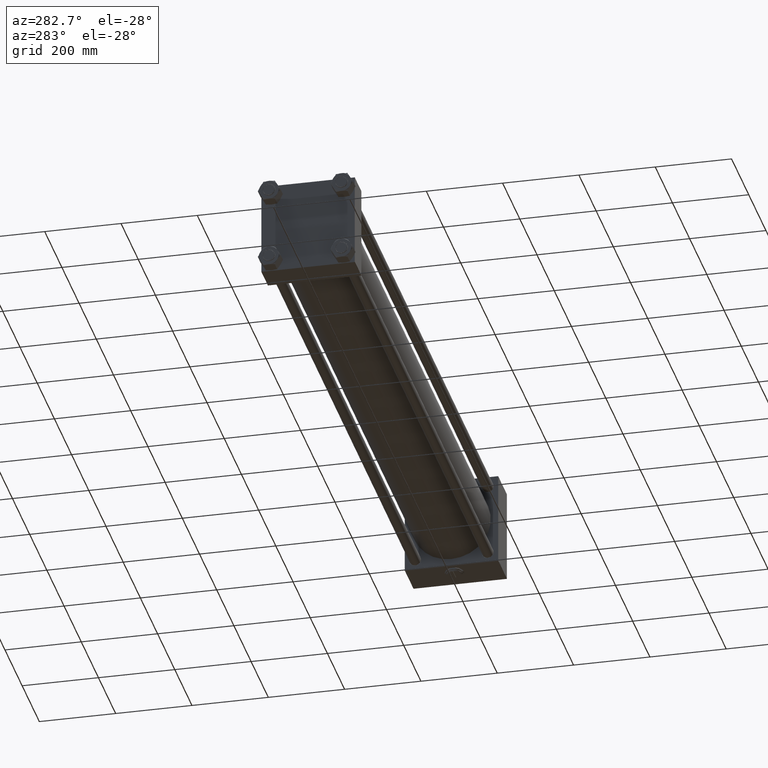
[diagram: clean part render]
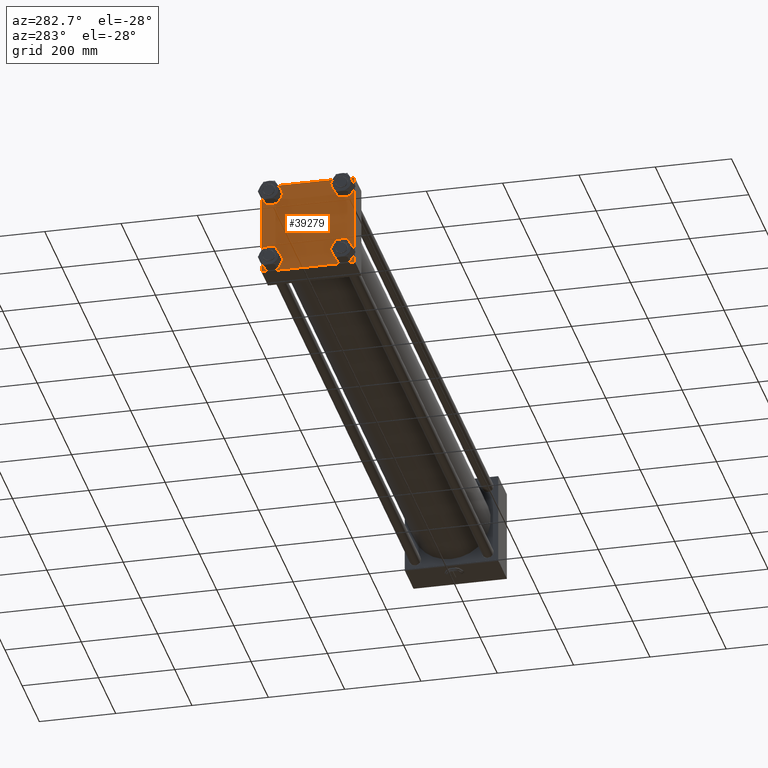
[diagram: same view with one face highlighted and labeled with its STEP entity id]
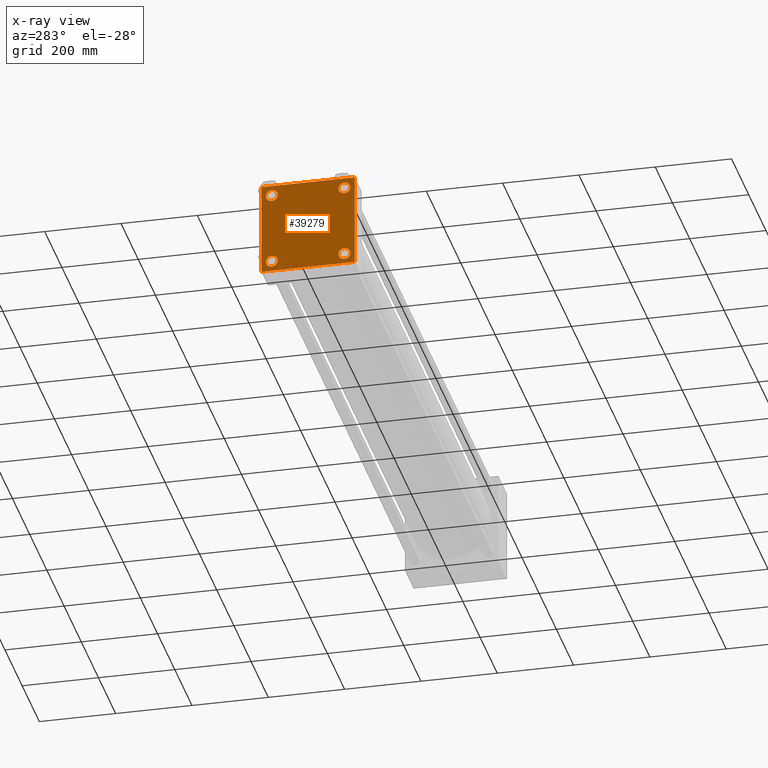
[diagram: x-ray of the same camera — body ghosted, the highlighted face saturated]
A machine part, auxiliary view. The second image highlights one B-rep face of the part: STEP entity #39279.
The next image is the same camera in x-ray: the body ghosted, the highlighted face saturated — about 0% of this face is hidden behind the body in this view.
In plain terms, the highlighted planar face has unit normal (-1, 0, 0).
Its self-contained STEP definition (entity closure, byte-faithful):
#1414 = AXIS2_PLACEMENT_3D ( 'NONE', #44071, #23887, #45120 ) ;
#1490 = EDGE_CURVE ( 'NONE', #48403, #10804, #31920, .T. ) ;
#1765 = DIRECTION ( 'NONE',  ( 0.000000000000000000, 0.000000000000000000, 1.000000000000000000 ) ) ;
#2481 = LINE ( 'NONE', #31654, #32756 ) ;
#3482 = FACE_BOUND ( 'NONE', #43320, .T. ) ;
#3654 = DIRECTION ( 'NONE',  ( 1.000000000000000000, -0.000000000000000000, 0.000000000000000000 ) ) ;
#3745 = DIRECTION ( 'NONE',  ( 1.000000000000000000, -0.000000000000000000, 0.000000000000000000 ) ) ;
#3845 = VERTEX_POINT ( 'NONE', #37448 ) ;
#4413 = DIRECTION ( 'NONE',  ( 0.000000000000000000, 0.7071067811865474617, -0.7071067811865474617 ) ) ;
#4495 = CARTESIAN_POINT ( 'NONE',  ( -0.000000000000000000, -122.2499999999982947, 122.2500000000016911 ) ) ;
#4717 = DIRECTION ( 'NONE',  ( 1.000000000000000000, -0.000000000000000000, 0.000000000000000000 ) ) ;
#5333 = VERTEX_POINT ( 'NONE', #51243 ) ;
#5590 = LINE ( 'NONE', #18313, #39614 ) ;
#6200 = CARTESIAN_POINT ( 'NONE',  ( 0.000000000000000000, -95.09999999999996589, -95.10000000000000853 ) ) ;
#7699 = CARTESIAN_POINT ( 'NONE',  ( 0.000000000000000000, 95.09999999999999432, -110.5999999999999943 ) ) ;
#7960 = CARTESIAN_POINT ( 'NONE',  ( 0.000000000000000000, 95.09999999999999432, -79.59999999999996589 ) ) ;
#9429 = ORIENTED_EDGE ( 'NONE', *, *, #41060, .T. ) ;
#9480 = EDGE_CURVE ( 'NONE', #3845, #33584, #5590, .T. ) ;
#9710 = EDGE_CURVE ( 'NONE', #41540, #33584, #16962, .T. ) ;
#10002 = VECTOR ( 'NONE', #33135, 999.9999999999998863 ) ;
#10800 = DIRECTION ( 'NONE',  ( -0.000000000000000000, -0.7071067811865081598, -0.7071067811865867636 ) ) ;
#10804 = VERTEX_POINT ( 'NONE', #48041 ) ;
#11365 = CARTESIAN_POINT ( 'NONE',  ( 0.000000000000000000, -95.09999999999996589, -95.10000000000000853 ) ) ;
#11598 = CARTESIAN_POINT ( 'NONE',  ( 0.000000000000000000, 95.09999999999999432, 79.59999999999996589 ) ) ;
#11620 = DIRECTION ( 'NONE',  ( 0.000000000000000000, 0.000000000000000000, 1.000000000000000000 ) ) ;
#11972 = CARTESIAN_POINT ( 'NONE',  ( 0.000000000000000000, 95.09999999999999432, -95.09999999999998010 ) ) ;
#12441 = DIRECTION ( 'NONE',  ( 0.000000000000000000, -0.7071067811865474617, 0.7071067811865474617 ) ) ;
#12489 = FACE_BOUND ( 'NONE', #44917, .T. ) ;
#12989 = ORIENTED_EDGE ( 'NONE', *, *, #28675, .T. ) ;
#13340 = EDGE_LOOP ( 'NONE', ( #28302, #20030 ) ) ;
#13433 = ORIENTED_EDGE ( 'NONE', *, *, #9480, .F. ) ;
#14735 = VERTEX_POINT ( 'NONE', #46129 ) ;
#14758 = EDGE_CURVE ( 'NONE', #18472, #41196, #19342, .T. ) ;
#14892 = VERTEX_POINT ( 'NONE', #26730 ) ;
#15533 = ORIENTED_EDGE ( 'NONE', *, *, #40079, .T. ) ;
#15595 = VERTEX_POINT ( 'NONE', #7960 ) ;
#15625 = LINE ( 'NONE', #35795, #25794 ) ;
#15677 = FACE_BOUND ( 'NONE', #36209, .T. ) ;
#16311 = VECTOR ( 'NONE', #12441, 1000.000000000000114 ) ;
#16622 = CARTESIAN_POINT ( 'NONE',  ( 0.000000000000000000, 121.9999999999999574, -122.4999999999999716 ) ) ;
#16962 = LINE ( 'NONE', #4495, #10002 ) ;
#17220 = CARTESIAN_POINT ( 'NONE',  ( 0.000000000000000000, -95.09999999999996589, 95.10000000000000853 ) ) ;
#18313 = CARTESIAN_POINT ( 'NONE',  ( 0.000000000000000000, 122.5000000000000142, 122.5000000000000284 ) ) ;
#18472 = VERTEX_POINT ( 'NONE', #35855 ) ;
#18976 = EDGE_CURVE ( 'NONE', #34602, #5333, #46614, .T. ) ;
#19123 = CIRCLE ( 'NONE', #25026, 15.50000000000001421 ) ;
#19342 = CIRCLE ( 'NONE', #32897, 15.50000000000001421 ) ;
#19895 = CARTESIAN_POINT ( 'NONE',  ( 0.000000000000000000, -95.09999999999996589, 110.6000000000000227 ) ) ;
#20030 = ORIENTED_EDGE ( 'NONE', *, *, #18976, .T. ) ;
#20061 = ORIENTED_EDGE ( 'NONE', *, *, #22004, .T. ) ;
#20348 = VECTOR ( 'NONE', #44139, 1000.000000000000000 ) ;
#20580 = CARTESIAN_POINT ( 'NONE',  ( 0.000000000000000000, 122.2500000000000000, 122.2500000000000000 ) ) ;
#20891 = DIRECTION ( 'NONE',  ( 0.000000000000000000, 0.000000000000000000, 1.000000000000000000 ) ) ;
#20935 = ORIENTED_EDGE ( 'NONE', *, *, #1490, .T. ) ;
#21159 = CIRCLE ( 'NONE', #50840, 15.50000000000001421 ) ;
#21387 = ORIENTED_EDGE ( 'NONE', *, *, #38769, .F. ) ;
#21873 = ORIENTED_EDGE ( 'NONE', *, *, #30695, .T. ) ;
#22004 = EDGE_CURVE ( 'NONE', #15595, #46321, #46767, .T. ) ;
#22799 = ORIENTED_EDGE ( 'NONE', *, *, #34456, .T. ) ;
#22841 = AXIS2_PLACEMENT_3D ( 'NONE', #11365, #3654, #11620 ) ;
#23887 = DIRECTION ( 'NONE',  ( -1.000000000000000000, 0.000000000000000000, -0.000000000000000000 ) ) ;
#24144 = DIRECTION ( 'NONE',  ( 1.000000000000000000, -0.000000000000000000, 0.000000000000000000 ) ) ;
#24621 = EDGE_CURVE ( 'NONE', #41196, #18472, #43323, .T. ) ;
#25026 = AXIS2_PLACEMENT_3D ( 'NONE', #40099, #3745, #52308 ) ;
#25305 = DIRECTION ( 'NONE',  ( 0.000000000000000000, 0.000000000000000000, 1.000000000000000000 ) ) ;
#25308 = ORIENTED_EDGE ( 'NONE', *, *, #24621, .T. ) ;
#25794 = VECTOR ( 'NONE', #28331, 1000.000000000000000 ) ;
#26360 = VERTEX_POINT ( 'NONE', #50257 ) ;
#26730 = CARTESIAN_POINT ( 'NONE',  ( 0.000000000000000000, 122.5000000000000142, -121.9999999999998579 ) ) ;
#26790 = ORIENTED_EDGE ( 'NONE', *, *, #33404, .T. ) ;
#27396 = CIRCLE ( 'NONE', #39262, 15.50000000000001421 ) ;
#28302 = ORIENTED_EDGE ( 'NONE', *, *, #50778, .T. ) ;
#28331 = DIRECTION ( 'NONE',  ( 0.000000000000000000, 0.000000000000000000, -1.000000000000000000 ) ) ;
#28643 = ORIENTED_EDGE ( 'NONE', *, *, #9710, .T. ) ;
#28675 = EDGE_CURVE ( 'NONE', #10804, #14735, #47748, .T. ) ;
#28926 = PLANE ( 'NONE',  #1414 ) ;
#29062 = CARTESIAN_POINT ( 'NONE',  ( 0.000000000000000000, -121.9999999999999858, 122.4999999999999858 ) ) ;
#30695 = EDGE_CURVE ( 'NONE', #26360, #47610, #27396, .T. ) ;
#31654 = CARTESIAN_POINT ( 'NONE',  ( 0.000000000000000000, -122.5000000000000000, 122.4999999999999858 ) ) ;
#31920 = LINE ( 'NONE', #32444, #20348 ) ;
#32444 = CARTESIAN_POINT ( 'NONE',  ( 0.000000000000000000, 122.5000000000000142, -122.4999999999999716 ) ) ;
#32559 = DIRECTION ( 'NONE',  ( 1.000000000000000000, -0.000000000000000000, 0.000000000000000000 ) ) ;
#32756 = VECTOR ( 'NONE', #43350, 1000.000000000000000 ) ;
#32850 = CARTESIAN_POINT ( 'NONE',  ( 0.000000000000000000, -122.2499999999999574, -122.2499999999999574 ) ) ;
#32897 = AXIS2_PLACEMENT_3D ( 'NONE', #17220, #49340, #50382 ) ;
#32984 = ORIENTED_EDGE ( 'NONE', *, *, #33128, .T. ) ;
#33128 = EDGE_CURVE ( 'NONE', #37026, #14892, #15625, .T. ) ;
#33135 = DIRECTION ( 'NONE',  ( -0.000000000000000000, 0.7071067811865574537, 0.7071067811865376918 ) ) ;
#33278 = DIRECTION ( 'NONE',  ( 1.000000000000000000, -0.000000000000000000, 0.000000000000000000 ) ) ;
#33404 = EDGE_CURVE ( 'NONE', #14892, #48403, #42903, .T. ) ;
#33584 = VERTEX_POINT ( 'NONE', #29062 ) ;
#34456 = EDGE_CURVE ( 'NONE', #3845, #37026, #35990, .T. ) ;
#34602 = VERTEX_POINT ( 'NONE', #45271 ) ;
#34898 = AXIS2_PLACEMENT_3D ( 'NONE', #11972, #24144, #40350 ) ;
#35795 = CARTESIAN_POINT ( 'NONE',  ( 0.000000000000000000, 122.5000000000000142, 122.5000000000000284 ) ) ;
#35855 = CARTESIAN_POINT ( 'NONE',  ( 0.000000000000000000, -95.09999999999996589, 79.59999999999999432 ) ) ;
#35990 = LINE ( 'NONE', #20580, #51302 ) ;
#36209 = EDGE_LOOP ( 'NONE', ( #25308, #38877 ) ) ;
#37026 = VERTEX_POINT ( 'NONE', #48526 ) ;
#37448 = CARTESIAN_POINT ( 'NONE',  ( 0.000000000000000000, 121.9999999999999574, 122.5000000000000284 ) ) ;
#38769 = EDGE_CURVE ( 'NONE', #41540, #14735, #2481, .T. ) ;
#38877 = ORIENTED_EDGE ( 'NONE', *, *, #14758, .T. ) ;
#39262 = AXIS2_PLACEMENT_3D ( 'NONE', #40820, #4717, #20891 ) ;
#39279 = ADVANCED_FACE ( 'NONE', ( #15677, #52300, #12489, #3482, #49100 ), #28926, .T. ) ;
#39614 = VECTOR ( 'NONE', #42730, 1000.000000000000000 ) ;
#40079 = EDGE_CURVE ( 'NONE', #47610, #26360, #19123, .T. ) ;
#40099 = CARTESIAN_POINT ( 'NONE',  ( 0.000000000000000000, 95.09999999999999432, 95.09999999999998010 ) ) ;
#40303 = DIRECTION ( 'NONE',  ( 0.000000000000000000, 0.000000000000000000, 1.000000000000000000 ) ) ;
#40350 = DIRECTION ( 'NONE',  ( 0.000000000000000000, 0.000000000000000000, 1.000000000000000000 ) ) ;
#40820 = CARTESIAN_POINT ( 'NONE',  ( 0.000000000000000000, 95.09999999999999432, 95.09999999999998010 ) ) ;
#41060 = EDGE_CURVE ( 'NONE', #46321, #15595, #50540, .T. ) ;
#41196 = VERTEX_POINT ( 'NONE', #19895 ) ;
#41540 = VERTEX_POINT ( 'NONE', #47722 ) ;
#42040 = AXIS2_PLACEMENT_3D ( 'NONE', #44296, #49054, #40303 ) ;
#42730 = DIRECTION ( 'NONE',  ( 0.000000000000000000, -1.000000000000000000, -1.699320956058913233E-16 ) ) ;
#42769 = EDGE_LOOP ( 'NONE', ( #32984, #26790, #20935, #12989, #21387, #28643, #13433, #22799 ) ) ;
#42903 = LINE ( 'NONE', #47140, #44485 ) ;
#43320 = EDGE_LOOP ( 'NONE', ( #21873, #15533 ) ) ;
#43323 = CIRCLE ( 'NONE', #50111, 15.50000000000001421 ) ;
#43350 = DIRECTION ( 'NONE',  ( 0.000000000000000000, 0.000000000000000000, -1.000000000000000000 ) ) ;
#44071 = CARTESIAN_POINT ( 'NONE',  ( 0.000000000000000000, 0.000000000000000000, 0.000000000000000000 ) ) ;
#44139 = DIRECTION ( 'NONE',  ( 0.000000000000000000, -1.000000000000000000, -1.132880637372608740E-16 ) ) ;
#44296 = CARTESIAN_POINT ( 'NONE',  ( 0.000000000000000000, 95.09999999999999432, -95.09999999999998010 ) ) ;
#44485 = VECTOR ( 'NONE', #10800, 1000.000000000000000 ) ;
#44917 = EDGE_LOOP ( 'NONE', ( #20061, #9429 ) ) ;
#45120 = DIRECTION ( 'NONE',  ( -0.000000000000000000, 0.000000000000000000, 1.000000000000000000 ) ) ;
#45271 = CARTESIAN_POINT ( 'NONE',  ( 0.000000000000000000, -95.09999999999996589, -110.6000000000000227 ) ) ;
#46129 = CARTESIAN_POINT ( 'NONE',  ( 0.000000000000000000, -122.5000000000000000, -121.9999999999999289 ) ) ;
#46321 = VERTEX_POINT ( 'NONE', #7699 ) ;
#46614 = CIRCLE ( 'NONE', #22841, 15.50000000000001421 ) ;
#46767 = CIRCLE ( 'NONE', #34898, 15.50000000000001421 ) ;
#47140 = CARTESIAN_POINT ( 'NONE',  ( 0.000000000000000000, 122.2500000000067217, -122.2499999999931646 ) ) ;
#47610 = VERTEX_POINT ( 'NONE', #11598 ) ;
#47722 = CARTESIAN_POINT ( 'NONE',  ( 0.000000000000000000, -122.5000000000000000, 121.9999999999999858 ) ) ;
#47748 = LINE ( 'NONE', #32850, #16311 ) ;
#48041 = CARTESIAN_POINT ( 'NONE',  ( 0.000000000000000000, -121.9999999999999289, -122.5000000000000000 ) ) ;
#48233 = CARTESIAN_POINT ( 'NONE',  ( 0.000000000000000000, -95.09999999999996589, 95.10000000000000853 ) ) ;
#48403 = VERTEX_POINT ( 'NONE', #16622 ) ;
#48526 = CARTESIAN_POINT ( 'NONE',  ( 0.000000000000000000, 122.5000000000000142, 121.9999999999999716 ) ) ;
#49054 = DIRECTION ( 'NONE',  ( 1.000000000000000000, -0.000000000000000000, 0.000000000000000000 ) ) ;
#49100 = FACE_OUTER_BOUND ( 'NONE', #42769, .T. ) ;
#49340 = DIRECTION ( 'NONE',  ( 1.000000000000000000, -0.000000000000000000, 0.000000000000000000 ) ) ;
#50111 = AXIS2_PLACEMENT_3D ( 'NONE', #48233, #32559, #1765 ) ;
#50257 = CARTESIAN_POINT ( 'NONE',  ( 0.000000000000000000, 95.09999999999999432, 110.5999999999999943 ) ) ;
#50382 = DIRECTION ( 'NONE',  ( 0.000000000000000000, 0.000000000000000000, 1.000000000000000000 ) ) ;
#50540 = CIRCLE ( 'NONE', #42040, 15.50000000000001421 ) ;
#50778 = EDGE_CURVE ( 'NONE', #5333, #34602, #21159, .T. ) ;
#50840 = AXIS2_PLACEMENT_3D ( 'NONE', #6200, #33278, #25305 ) ;
#51243 = CARTESIAN_POINT ( 'NONE',  ( 0.000000000000000000, -95.09999999999996589, -79.59999999999999432 ) ) ;
#51302 = VECTOR ( 'NONE', #4413, 1000.000000000000114 ) ;
#52300 = FACE_BOUND ( 'NONE', #13340, .T. ) ;
#52308 = DIRECTION ( 'NONE',  ( 0.000000000000000000, 0.000000000000000000, 1.000000000000000000 ) ) ;